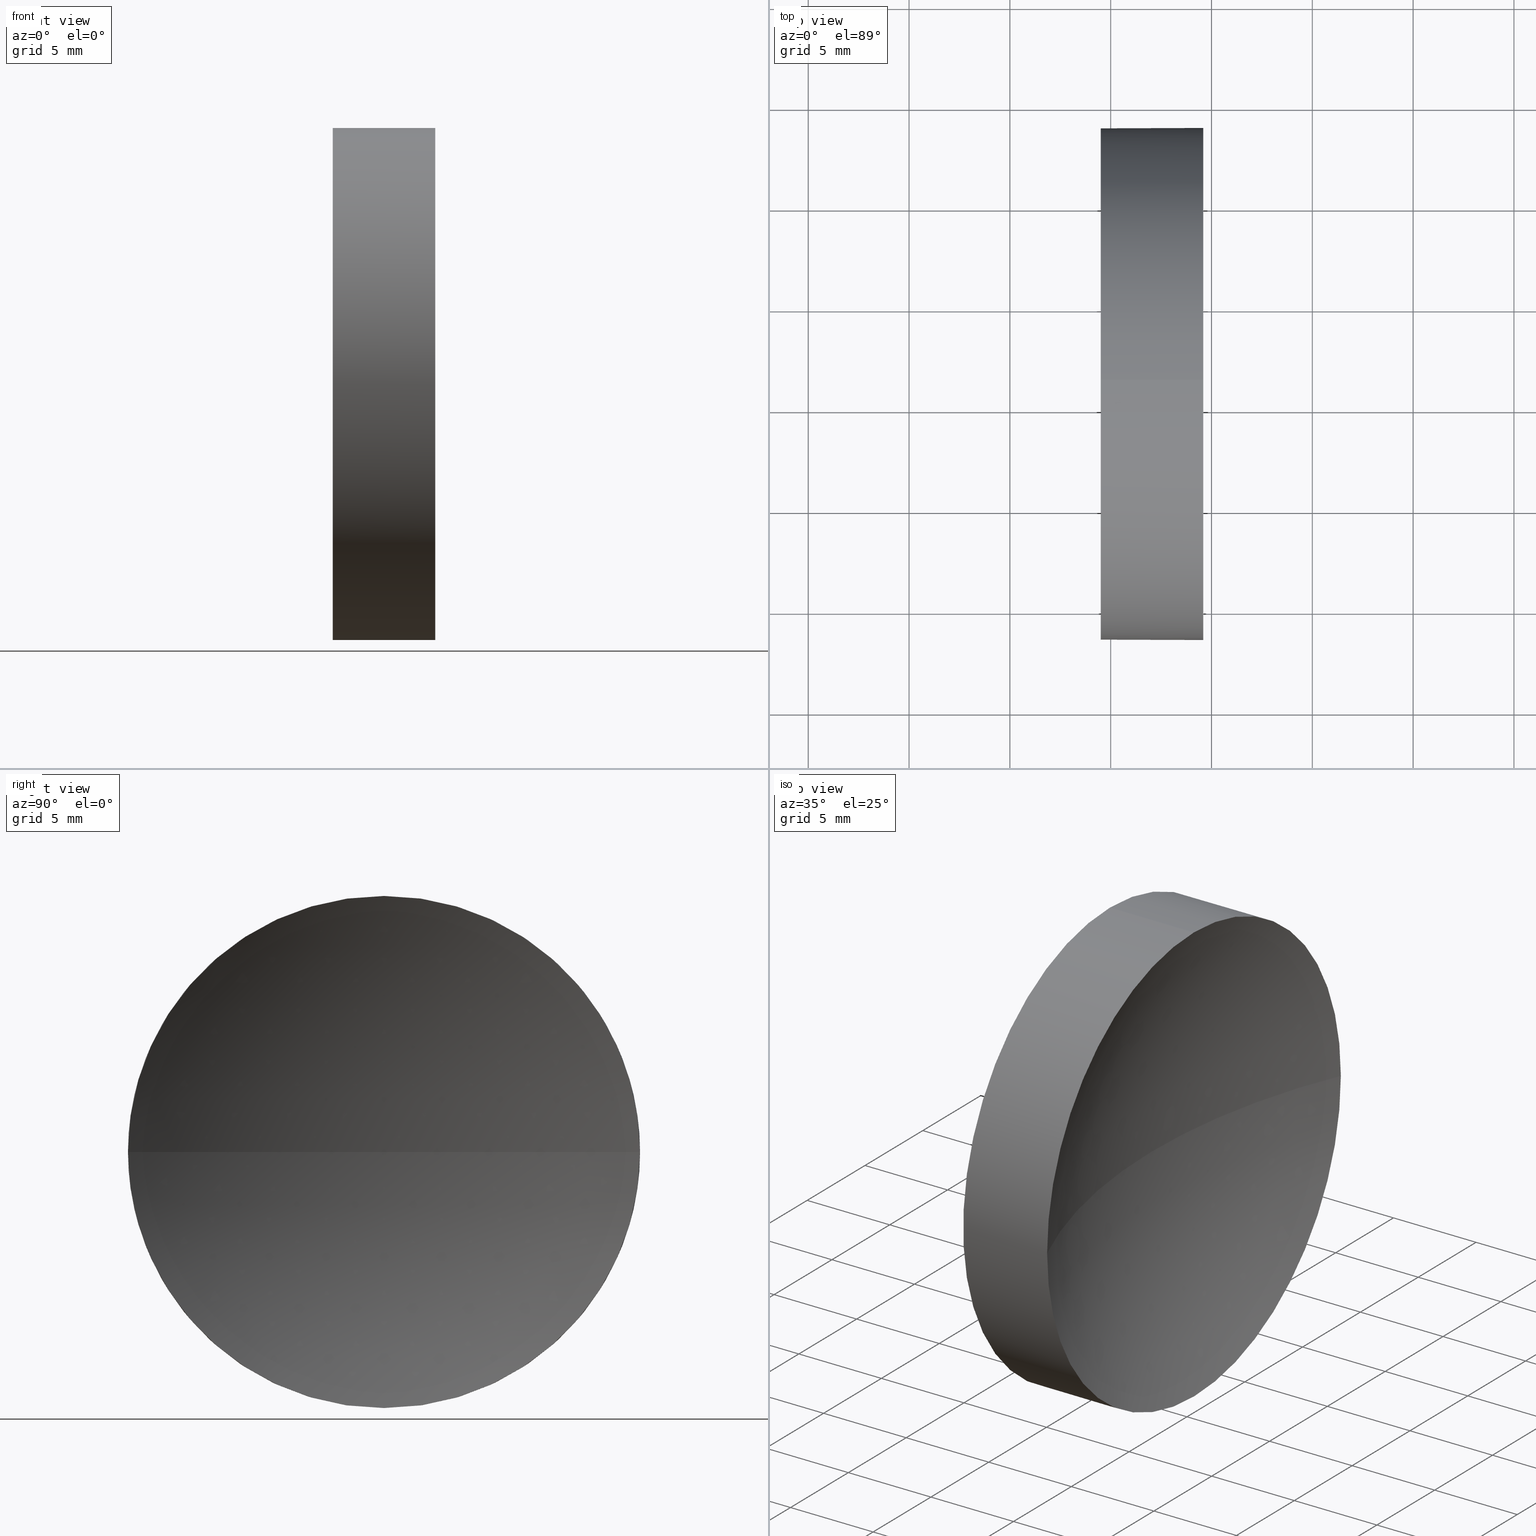
[diagram: canonical four-view strip — front | top / right | iso, engineering-drawing reading convention]
A machine part, canonical four-view strip (front | top / right | iso — engineering-drawing reading convention). The complete STEP part file that produces these views, byte-faithful:
ISO-10303-21;
HEADER;
FILE_DESCRIPTION (( 'STEP AP214' ),
    '1' );
FILE_NAME ('120309.STEP',
    '2019-06-26T06:58:54',
    ( '' ),
    ( '' ),
    'SwSTEP 2.0',
    'SolidWorks 2016',
    '' );
FILE_SCHEMA (( 'AUTOMOTIVE_DESIGN' ));
ENDSEC;

DATA;
#1 = ORIENTED_EDGE ( 'NONE', *, *, #120, .T. ) ;
#2 = DIRECTION ( 'NONE',  ( 0.0000000000000000000, -1.000000000000000000, 0.0000000000000000000 ) ) ;
#3 = DIRECTION ( 'NONE',  ( -1.000000000000000000, 0.0000000000000000000, 0.0000000000000000000 ) ) ;
#4 = ORIENTED_EDGE ( 'NONE', *, *, #84, .T. ) ;
#5 = PRODUCT_CONTEXT ( 'NONE', #176, 'mechanical' ) ;
#6 = MANIFOLD_SOLID_BREP ( '��ת1', #152 ) ;
#7 = ORIENTED_EDGE ( 'NONE', *, *, #132, .F. ) ;
#8 = ADVANCED_FACE ( 'NONE', ( #61 ), #12, .F. ) ;
#9 = CIRCLE ( 'NONE', #134, 12.70000000000000300 ) ;
#10 = ORIENTED_EDGE ( 'NONE', *, *, #112, .T. ) ;
#11 = DIRECTION ( 'NONE',  ( -1.000000000000000000, -0.0000000000000000000, -0.0000000000000000000 ) ) ;
#12 = PLANE ( 'NONE',  #41 ) ;
#13 = DIRECTION ( 'NONE',  ( 0.0000000000000000000, 0.0000000000000000000, 1.000000000000000000 ) ) ;
#14 = CARTESIAN_POINT ( 'NONE',  ( 111.9552297575605700, 71.19398908659370300, 0.0000000000000000000 ) ) ;
#15 = CIRCLE ( 'NONE', #58, 12.70000000000000300 ) ;
#16 = CARTESIAN_POINT ( 'NONE',  ( 124.5909521089847200, 71.19398908659370300, -12.70000000000001500 ) ) ;
#17 = CARTESIAN_POINT ( 'NONE',  ( 154.5068341785477100, 71.19398908659371700, 0.0000000000000000000 ) ) ;
#18 = CARTESIAN_POINT ( 'NONE',  ( 124.5909521089847200, 71.19398908659370300, 12.70000000000001500 ) ) ;
#19 = SURFACE_STYLE_FILL_AREA ( #161 ) ;
#20 = ORIENTED_EDGE ( 'NONE', *, *, #22, .F. ) ;
#21 = ADVANCED_FACE ( 'NONE', ( #119 ), #166, .T. ) ;
#22 = EDGE_CURVE ( 'NONE', #178, #125, #82, .T. ) ;
#23 = PRODUCT_DEFINITION_FORMATION_WITH_SPECIFIED_SOURCE ( '�κ�', '', #144, .NOT_KNOWN. ) ;
#24 = CARTESIAN_POINT ( 'NONE',  ( 124.5909521089847200, 71.19398908659370300, 0.0000000000000000000 ) ) ;
#25 = ORIENTED_EDGE ( 'NONE', *, *, #153, .T. ) ;
#26 = SURFACE_SIDE_STYLE ('',( #19 ) ) ;
#27 = LINE ( 'NONE', #55, #159 ) ;
#28 = DIRECTION ( 'NONE',  ( 0.0000000000000000000, 0.0000000000000000000, 1.000000000000000000 ) ) ;
#29 = VERTEX_POINT ( 'NONE', #124 ) ;
#30 = PRESENTATION_STYLE_ASSIGNMENT (( #96 ) ) ;
#31 = AXIS2_PLACEMENT_3D ( 'NONE', #17, #126, #3 ) ;
#32 = ORIENTED_EDGE ( 'NONE', *, *, #73, .T. ) ;
#33 = CARTESIAN_POINT ( 'NONE',  ( 111.9552297575605700, 71.19398908659370300, 0.0000000000000000000 ) ) ;
#34 = EDGE_CURVE ( 'NONE', #125, #147, #101, .T. ) ;
#35 = DIRECTION ( 'NONE',  ( -1.000000000000000000, -0.0000000000000000000, -0.0000000000000000000 ) ) ;
#36 = ORIENTED_EDGE ( 'NONE', *, *, #97, .T. ) ;
#37 = CARTESIAN_POINT ( 'NONE',  ( 119.5068341785477100, 71.19398908659370300, 0.0000000000000000000 ) ) ;
#38 = DIRECTION ( 'NONE',  ( 0.0000000000000000000, 0.0000000000000000000, 1.000000000000000000 ) ) ;
#39 = PRESENTATION_LAYER_ASSIGNMENT (  '', '', ( #137 ) ) ;
#40 = SURFACE_STYLE_USAGE ( .BOTH. , #26 ) ;
#41 = AXIS2_PLACEMENT_3D ( 'NONE', #172, #182, #156 ) ;
#42 =( LENGTH_UNIT ( ) NAMED_UNIT ( * ) SI_UNIT ( .MILLI., .METRE. ) );
#43 = MECHANICAL_DESIGN_GEOMETRIC_PRESENTATION_REPRESENTATION (  '', ( #137 ), #169 ) ;
#44 = SPHERICAL_SURFACE ( 'NONE', #122, 32.50000000000000000 ) ;
#45 = EDGE_LOOP ( 'NONE', ( #77, #25, #138, #105, #4 ) ) ;
#46 = AXIS2_PLACEMENT_3D ( 'NONE', #33, #168, #184 ) ;
#47 = DIRECTION ( 'NONE',  ( 0.0000000000000000000, 0.0000000000000000000, 1.000000000000000000 ) ) ;
#48 = DIRECTION ( 'NONE',  ( 0.0000000000000000000, 0.0000000000000000000, 1.000000000000000000 ) ) ;
#49 = CIRCLE ( 'NONE', #139, 12.70000000000001700 ) ;
#50 = DIRECTION ( 'NONE',  ( 0.0000000000000000000, 0.0000000000000000000, 1.000000000000000000 ) ) ;
#51 = AXIS2_PLACEMENT_3D ( 'NONE', #103, #76, #177 ) ;
#52 = CARTESIAN_POINT ( 'NONE',  ( 154.5068341785477100, 71.19398908659371700, 0.0000000000000000000 ) ) ;
#53 = COLOUR_RGB ( '',1.000000000000000000, 1.000000000000000000, 1.000000000000000000 ) ;
#54 = ORIENTED_EDGE ( 'NONE', *, *, #34, .F. ) ;
#55 = CARTESIAN_POINT ( 'NONE',  ( 111.9552297575605700, 71.19398908659370300, 12.70000000000001000 ) ) ;
#56 = DIRECTION ( 'NONE',  ( 0.0000000000000000000, 0.0000000000000000000, 1.000000000000000000 ) ) ;
#57 = DIRECTION ( 'NONE',  ( 0.0000000000000000000, -1.000000000000000000, -1.224646799147353500E-016 ) ) ;
#58 = AXIS2_PLACEMENT_3D ( 'NONE', #37, #65, #148 ) ;
#59 = ORIENTED_EDGE ( 'NONE', *, *, #120, .F. ) ;
#60 = CIRCLE ( 'NONE', #108, 12.70000000000001700 ) ;
#61 = FACE_OUTER_BOUND ( 'NONE', #181, .T. ) ;
#62 = AXIS2_PLACEMENT_3D ( 'NONE', #14, #35, #47 ) ;
#63 = EDGE_LOOP ( 'NONE', ( #154, #113, #1, #36, #7 ) ) ;
#64 = ADVANCED_FACE ( 'NONE', ( #107 ), #123, .F. ) ;
#65 = DIRECTION ( 'NONE',  ( -1.000000000000000000, -0.0000000000000000000, -0.0000000000000000000 ) ) ;
#66 = CARTESIAN_POINT ( 'NONE',  ( 154.5068341785477100, 71.19398908659371700, 0.0000000000000000000 ) ) ;
#67 = DIRECTION ( 'NONE',  ( -1.000000000000000000, -0.0000000000000000000, -0.0000000000000000000 ) ) ;
#68 = ORIENTED_EDGE ( 'NONE', *, *, #132, .T. ) ;
#69 = AXIS2_PLACEMENT_3D ( 'NONE', #24, #141, #13 ) ;
#70 = VERTEX_POINT ( 'NONE', #143 ) ;
#71 = UNCERTAINTY_MEASURE_WITH_UNIT (LENGTH_MEASURE( 1.000000000000000100E-005 ), #42, 'distance_accuracy_value', 'NONE');
#72 = CARTESIAN_POINT ( 'NONE',  ( 119.5068341785477100, 71.19398908659370300, 12.70000000000000300 ) ) ;
#73 = EDGE_CURVE ( 'NONE', #90, #29, #15, .T. ) ;
#74 = DIRECTION ( 'NONE',  ( 0.0000000000000000000, 0.0000000000000000000, 1.000000000000000000 ) ) ;
#75 = DIRECTION ( 'NONE',  ( 0.0000000000000000000, -1.224646799147353200E-016, 1.000000000000000000 ) ) ;
#76 = DIRECTION ( 'NONE',  ( 0.0000000000000000000, 0.0000000000000000000, 1.000000000000000000 ) ) ;
#77 = ORIENTED_EDGE ( 'NONE', *, *, #22, .T. ) ;
#78 = UNCERTAINTY_MEASURE_WITH_UNIT (LENGTH_MEASURE( 1.000000000000000100E-005 ), #130, 'distance_accuracy_value', 'NONE');
#79 = ADVANCED_FACE ( 'NONE', ( #165 ), #127, .T. ) ;
#80 = AXIS2_PLACEMENT_3D ( 'NONE', #99, #11, #38 ) ;
#81 =( NAMED_UNIT ( * ) PLANE_ANGLE_UNIT ( ) SI_UNIT ( $, .RADIAN. ) );
#82 = CIRCLE ( 'NONE', #69, 12.70000000000001700 ) ;
#83 = FILL_AREA_STYLE ('',( #158 ) ) ;
#84 = EDGE_CURVE ( 'NONE', #115, #178, #49, .T. ) ;
#85 = PRODUCT_DEFINITION_CONTEXT ( 'detailed design', #104, 'design' ) ;
#86 = APPLICATION_PROTOCOL_DEFINITION ( 'draft international standard', 'automotive_design', 1998, #104 ) ;
#87 = DIRECTION ( 'NONE',  ( -1.000000000000000000, -0.0000000000000000000, -0.0000000000000000000 ) ) ;
#88 =( NAMED_UNIT ( * ) SI_UNIT ( $, .STERADIAN. ) SOLID_ANGLE_UNIT ( ) );
#89 = PRESENTATION_STYLE_ASSIGNMENT (( #40 ) ) ;
#90 = VERTEX_POINT ( 'NONE', #72 ) ;
#91 = APPLICATION_PROTOCOL_DEFINITION ( 'draft international standard', 'automotive_design', 1998, #176 ) ;
#92 = AXIS2_PLACEMENT_3D ( 'NONE', #66, #48, #183 ) ;
#93 =( GEOMETRIC_REPRESENTATION_CONTEXT ( 3 ) GLOBAL_UNCERTAINTY_ASSIGNED_CONTEXT ( ( #71 ) ) GLOBAL_UNIT_ASSIGNED_CONTEXT ( ( #42, #164, #175 ) ) REPRESENTATION_CONTEXT ( 'NONE', 'WORKASPACE' ) );
#94 = ORIENTED_EDGE ( 'NONE', *, *, #160, .F. ) ;
#95 = PRODUCT_DEFINITION_SHAPE ( 'NONE', 'NONE',  #185 ) ;
#96 = SURFACE_STYLE_USAGE ( .BOTH. , #140 ) ;
#97 = EDGE_CURVE ( 'NONE', #115, #90, #27, .T. ) ;
#98 = ORIENTED_EDGE ( 'NONE', *, *, #112, .F. ) ;
#99 = CARTESIAN_POINT ( 'NONE',  ( 124.5909521089847200, 71.19398908659370300, 0.0000000000000000000 ) ) ;
#100 =( NAMED_UNIT ( * ) SI_UNIT ( $, .STERADIAN. ) SOLID_ANGLE_UNIT ( ) );
#101 = CIRCLE ( 'NONE', #80, 12.70000000000001700 ) ;
#102 = CARTESIAN_POINT ( 'NONE',  ( 124.5909521089847200, 83.89398908659372000, 1.555301434917138800E-015 ) ) ;
#103 = CARTESIAN_POINT ( 'NONE',  ( 0.0000000000000000000, 0.0000000000000000000, 0.0000000000000000000 ) ) ;
#104 = APPLICATION_CONTEXT ( 'automotive_design' ) ;
#105 = ORIENTED_EDGE ( 'NONE', *, *, #97, .F. ) ;
#106 = STYLED_ITEM ( 'NONE', ( #30 ), #6 ) ;
#107 = FACE_OUTER_BOUND ( 'NONE', #186, .T. ) ;
#108 = AXIS2_PLACEMENT_3D ( 'NONE', #150, #87, #56 ) ;
#109 = ADVANCED_FACE ( 'NONE', ( #179 ), #44, .F. ) ;
#110 = PRODUCT_RELATED_PRODUCT_CATEGORY ( 'part', '', ( #144 ) ) ;
#111 = SURFACE_STYLE_FILL_AREA ( #83 ) ;
#112 = EDGE_CURVE ( 'NONE', #147, #70, #142, .T. ) ;
#113 = ORIENTED_EDGE ( 'NONE', *, *, #34, .T. ) ;
#114 = DIRECTION ( 'NONE',  ( -1.000000000000000000, -0.0000000000000000000, -0.0000000000000000000 ) ) ;
#115 = VERTEX_POINT ( 'NONE', #18 ) ;
#116 = CARTESIAN_POINT ( 'NONE',  ( 119.5068341785477100, 71.19398908659370300, 0.0000000000000000000 ) ) ;
#117 = CARTESIAN_POINT ( 'NONE',  ( 124.5909521089847200, 71.19398908659370300, 0.0000000000000000000 ) ) ;
#118 = SHAPE_DEFINITION_REPRESENTATION ( #95, #121 ) ;
#119 = FACE_OUTER_BOUND ( 'NONE', #63, .T. ) ;
#120 = EDGE_CURVE ( 'NONE', #147, #115, #60, .T. ) ;
#121 = ADVANCED_BREP_SHAPE_REPRESENTATION ( '120309', ( #6, #51 ), #93 ) ;
#122 = AXIS2_PLACEMENT_3D ( 'NONE', #52, #28, #2 ) ;
#123 = SPHERICAL_SURFACE ( 'NONE', #92, 32.50000000000000000 ) ;
#124 = CARTESIAN_POINT ( 'NONE',  ( 119.5068341785477100, 71.19398908659370300, -12.70000000000000300 ) ) ;
#125 = VERTEX_POINT ( 'NONE', #16 ) ;
#126 = DIRECTION ( 'NONE',  ( 0.0000000000000000000, 0.0000000000000000000, -1.000000000000000000 ) ) ;
#127 = CYLINDRICAL_SURFACE ( 'NONE', #62, 12.70000000000001000 ) ;
#128 = CARTESIAN_POINT ( 'NONE',  ( 124.5909521089847200, 58.49398908659370000, 0.0000000000000000000 ) ) ;
#129 = CIRCLE ( 'NONE', #155, 32.50000000000000000 ) ;
#130 =( LENGTH_UNIT ( ) NAMED_UNIT ( * ) SI_UNIT ( .MILLI., .METRE. ) );
#131 = UNCERTAINTY_MEASURE_WITH_UNIT (LENGTH_MEASURE( 1.000000000000000100E-005 ), #170, 'distance_accuracy_value', 'NONE');
#132 = EDGE_CURVE ( 'NONE', #29, #90, #9, .T. ) ;
#133 = FILL_AREA_STYLE_COLOUR ( '', #53 ) ;
#134 = AXIS2_PLACEMENT_3D ( 'NONE', #116, #114, #74 ) ;
#135 = MECHANICAL_DESIGN_GEOMETRIC_PRESENTATION_REPRESENTATION (  '', ( #106 ), #167 ) ;
#136 = LINE ( 'NONE', #174, #162 ) ;
#137 = STYLED_ITEM ( 'NONE', ( #89 ), #121 ) ;
#138 = ORIENTED_EDGE ( 'NONE', *, *, #73, .F. ) ;
#139 = AXIS2_PLACEMENT_3D ( 'NONE', #117, #145, #50 ) ;
#140 = SURFACE_SIDE_STYLE ('',( #111 ) ) ;
#141 = DIRECTION ( 'NONE',  ( -1.000000000000000000, -0.0000000000000000000, -0.0000000000000000000 ) ) ;
#142 = CIRCLE ( 'NONE', #31, 32.50000000000000000 ) ;
#143 = CARTESIAN_POINT ( 'NONE',  ( 122.0068341785477100, 71.19398908659371700, 0.0000000000000000000 ) ) ;
#144 = PRODUCT ( '120309', '120309', '', ( #5 ) ) ;
#145 = DIRECTION ( 'NONE',  ( -1.000000000000000000, -0.0000000000000000000, -0.0000000000000000000 ) ) ;
#146 = PRESENTATION_LAYER_ASSIGNMENT (  '', '', ( #106 ) ) ;
#147 = VERTEX_POINT ( 'NONE', #128 ) ;
#148 = DIRECTION ( 'NONE',  ( 0.0000000000000000000, 0.0000000000000000000, 1.000000000000000000 ) ) ;
#149 = CARTESIAN_POINT ( 'NONE',  ( 154.5068341785477100, 71.19398908659371700, 0.0000000000000000000 ) ) ;
#150 = CARTESIAN_POINT ( 'NONE',  ( 124.5909521089847200, 71.19398908659370300, 0.0000000000000000000 ) ) ;
#151 =( NAMED_UNIT ( * ) PLANE_ANGLE_UNIT ( ) SI_UNIT ( $, .RADIAN. ) );
#152 = CLOSED_SHELL ( 'NONE', ( #79, #109, #64, #21, #8 ) ) ;
#153 = EDGE_CURVE ( 'NONE', #125, #29, #136, .T. ) ;
#154 = ORIENTED_EDGE ( 'NONE', *, *, #153, .F. ) ;
#155 = AXIS2_PLACEMENT_3D ( 'NONE', #149, #75, #57 ) ;
#156 = DIRECTION ( 'NONE',  ( 0.0000000000000000000, 0.0000000000000000000, -1.000000000000000000 ) ) ;
#157 = ORIENTED_EDGE ( 'NONE', *, *, #84, .F. ) ;
#158 = FILL_AREA_STYLE_COLOUR ( '', #180 ) ;
#159 = VECTOR ( 'NONE', #67, 1000.000000000000000 ) ;
#160 = EDGE_CURVE ( 'NONE', #178, #70, #129, .T. ) ;
#161 = FILL_AREA_STYLE ('',( #133 ) ) ;
#162 = VECTOR ( 'NONE', #173, 1000.000000000000000 ) ;
#163 = EDGE_LOOP ( 'NONE', ( #20, #171, #98, #54 ) ) ;
#164 =( NAMED_UNIT ( * ) PLANE_ANGLE_UNIT ( ) SI_UNIT ( $, .RADIAN. ) );
#165 = FACE_OUTER_BOUND ( 'NONE', #45, .T. ) ;
#166 = CYLINDRICAL_SURFACE ( 'NONE', #46, 12.70000000000001000 ) ;
#167 =( GEOMETRIC_REPRESENTATION_CONTEXT ( 3 ) GLOBAL_UNCERTAINTY_ASSIGNED_CONTEXT ( ( #131 ) ) GLOBAL_UNIT_ASSIGNED_CONTEXT ( ( #170, #81, #100 ) ) REPRESENTATION_CONTEXT ( 'NONE', 'WORKASPACE' ) );
#168 = DIRECTION ( 'NONE',  ( -1.000000000000000000, -0.0000000000000000000, -0.0000000000000000000 ) ) ;
#169 =( GEOMETRIC_REPRESENTATION_CONTEXT ( 3 ) GLOBAL_UNCERTAINTY_ASSIGNED_CONTEXT ( ( #78 ) ) GLOBAL_UNIT_ASSIGNED_CONTEXT ( ( #130, #151, #88 ) ) REPRESENTATION_CONTEXT ( 'NONE', 'WORKASPACE' ) );
#170 =( LENGTH_UNIT ( ) NAMED_UNIT ( * ) SI_UNIT ( .MILLI., .METRE. ) );
#171 = ORIENTED_EDGE ( 'NONE', *, *, #160, .T. ) ;
#172 = CARTESIAN_POINT ( 'NONE',  ( 119.5068341785477100, 71.19398908659370300, 0.0000000000000000000 ) ) ;
#173 = DIRECTION ( 'NONE',  ( -1.000000000000000000, -0.0000000000000000000, -0.0000000000000000000 ) ) ;
#174 = CARTESIAN_POINT ( 'NONE',  ( 111.9552297575605700, 71.19398908659370300, -12.70000000000001000 ) ) ;
#175 =( NAMED_UNIT ( * ) SI_UNIT ( $, .STERADIAN. ) SOLID_ANGLE_UNIT ( ) );
#176 = APPLICATION_CONTEXT ( 'automotive_design' ) ;
#177 = DIRECTION ( 'NONE',  ( 1.000000000000000000, 0.0000000000000000000, 0.0000000000000000000 ) ) ;
#178 = VERTEX_POINT ( 'NONE', #102 ) ;
#179 = FACE_OUTER_BOUND ( 'NONE', #163, .T. ) ;
#180 = COLOUR_RGB ( '',1.000000000000000000, 1.000000000000000000, 1.000000000000000000 ) ;
#181 = EDGE_LOOP ( 'NONE', ( #32, #68 ) ) ;
#182 = DIRECTION ( 'NONE',  ( 1.000000000000000000, 0.0000000000000000000, 0.0000000000000000000 ) ) ;
#183 = DIRECTION ( 'NONE',  ( 0.0000000000000000000, -1.000000000000000000, 0.0000000000000000000 ) ) ;
#184 = DIRECTION ( 'NONE',  ( 0.0000000000000000000, 0.0000000000000000000, 1.000000000000000000 ) ) ;
#185 = PRODUCT_DEFINITION ( 'δ֪', '', #23, #85 ) ;
#186 = EDGE_LOOP ( 'NONE', ( #94, #157, #59, #10 ) ) ;
ENDSEC;
END-ISO-10303-21;
